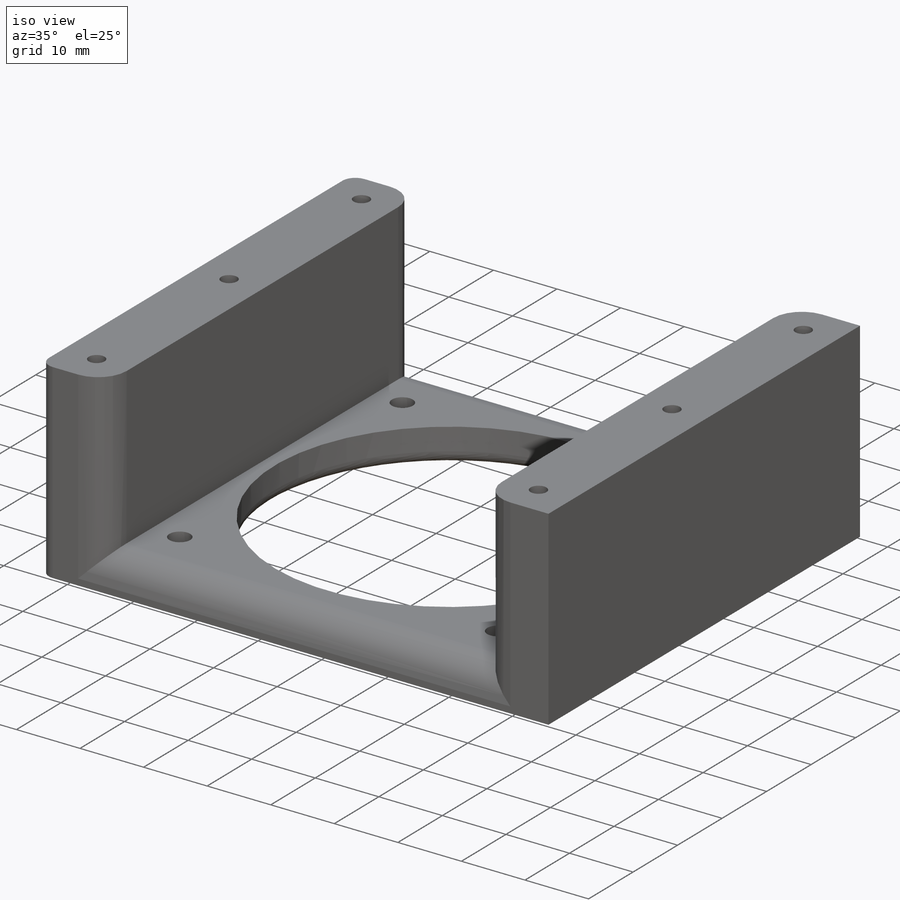
[diagram: iso view]
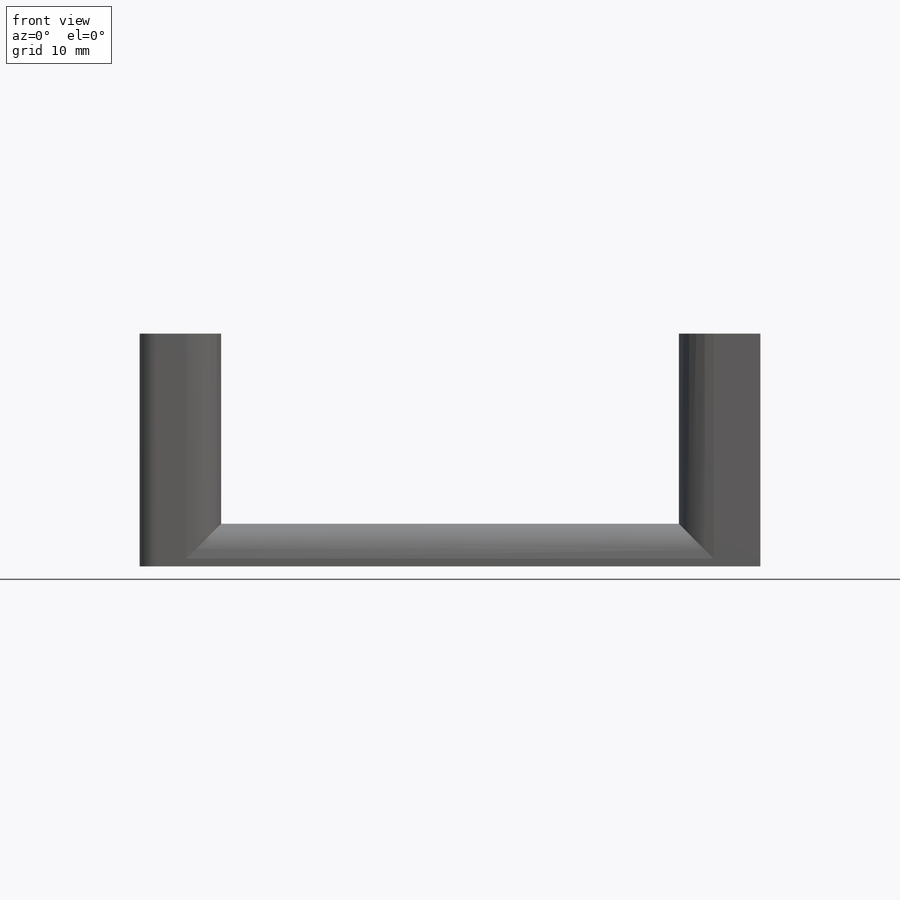
[diagram: front view]
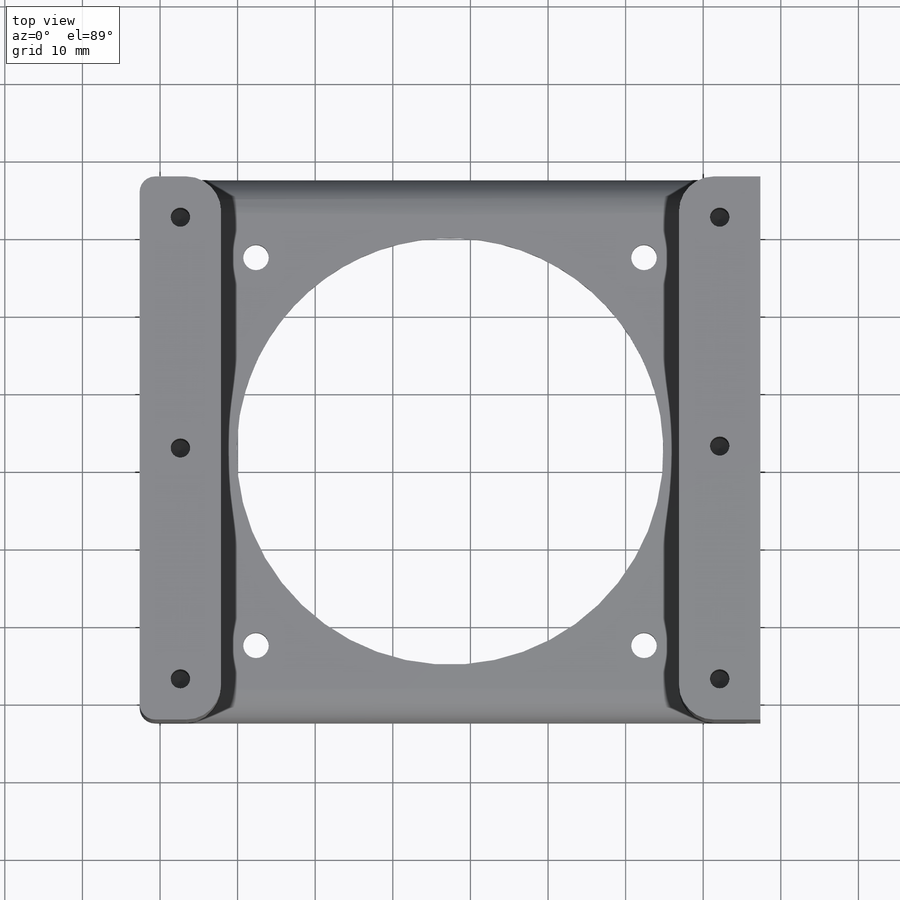
[diagram: top view]
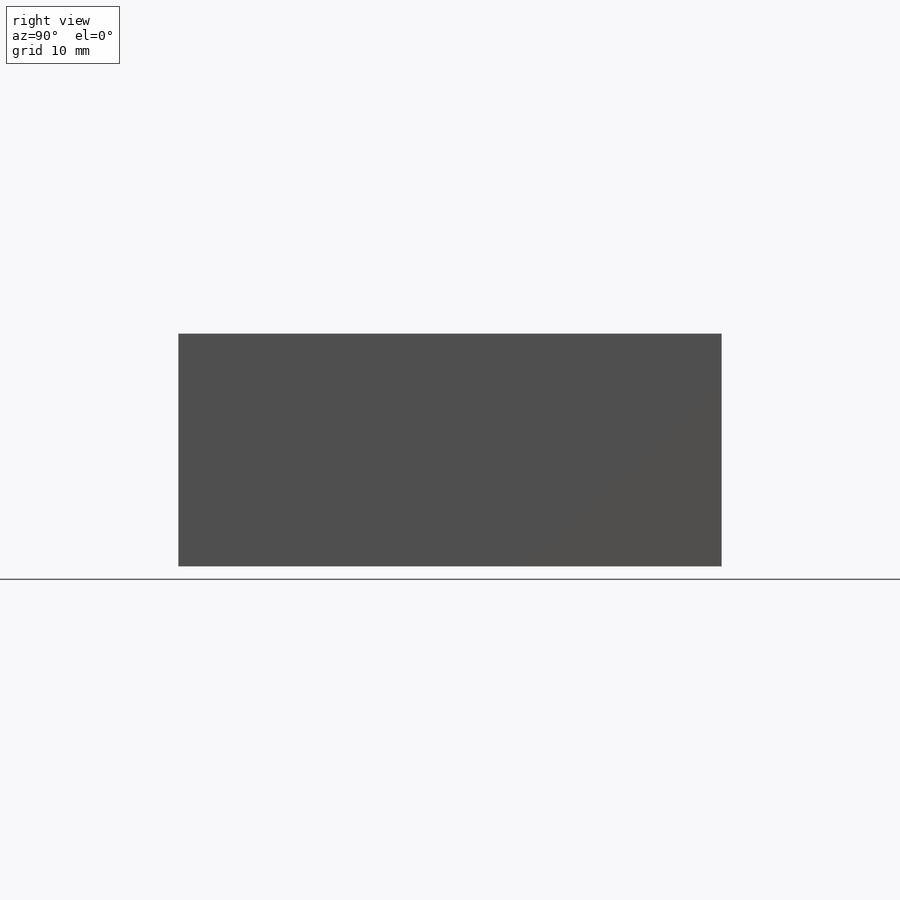
[diagram: right view]
SOLIDWORKS PART (.sldprt)
format: sldprt  version: not decoded by parser v0  size: 403,968 bytes
history: native  units: mm
features: sketch x13, fillet x5, cut_extrude x3, hole x3, material x1, extrude x1 (+11 scaffold rows collapsed)
feature tree (37):
  scaffold x11  (default folders/planes/origin — collapsed)
  material  "Material <not specified>"
  sketch  "Sketch1"  dims[D1=80.0mm D2=70.0mm]
  extrude  "Boss-Extrude1"  Depth=35.5mm
  sketch  "Sketch2"  dims[D1=59.0mm D2=24.5mm D3=5.5mm D4=10.5mm]
  cut_extrude  "Cut-Extrude1"  [1 undecoded]
  sketch  "Sketch6"  dims[c1.D3=55.0mm c1.D1=35.0mm c1.D2=~49.464368mm c2.D2=90.0deg c3.D2=40.0mm]
  cut_extrude  "Cut-Extrude3"  Depth=5.5mm
  sketch  "Sketch7"  dims[D1=15.0mm D2=10.0mm D3=10.0mm D4=15.0mm D5=15.0mm D6=10.0mm D7=10.0mm D8=15.0mm]
  hole  "M4x0.7 Tapped Hole1"  Diameter=3.3mm Depth=5.5mm
  sketch  "3DSketch2"
  sketch  "Sketch8"  dims[hole-wizard template sketch: 59 standard entries collapsed; hole parameters kept: c18.Thread Major Dia.=3.3mm c18.Thru Tap Drill Depth=5.5mm]
  fillet  "Fillet2"  Radius=2mm
  sketch  "Sketch9"
  cut_extrude  "Cut-Extrude5"  [1 undecoded]
  sketch  "Sketch10"  dims[c1.D1=5.25mm c1.D2=5.25mm c1.D3=7.25mm c2.D2=5.25mm c2.D3=5.25mm c2.D4=35.0mm c2.D5=5.25mm c2.D6=5.25mm c2.D7=5.25mm]
  hole  "Tap Drill for M3x0.5 Tap1"  Diameter=2.5mm Depth=15mm
  sketch  "3DSketch3"
  sketch  "Sketch11"  dims[hole-wizard template sketch: 47 standard entries collapsed; hole parameters kept: c15.Hole Depth=15.0mm c15.D3=~14.816244mm c15.Drill Angle=118.0deg]
  fillet  "Fillet5"  Radius=2mm
  fillet  "Fillet6"  Radius=2mm
  fillet  "Fillet7"  Radius=4.5mm
  fillet  "Fillet8"  Radius=4.5mm
  sketch  "Sketch13"  dims[D1=4.75mm D2=20.0mm D3=20.0mm D4=4.75mm D5=4.75mm D6=4.75mm D7=20.0mm D8=20.0mm]
  hole  "Tap Drill for M3x0.5 Tap2"  Diameter=2.5mm Depth=15mm
  sketch  "3DSketch4"
  sketch  "Sketch14"  dims[hole-wizard template sketch: 47 standard entries collapsed; hole parameters kept: c15.Hole Depth=15.0mm c15.D3=~14.816244mm c15.Drill Angle=118.0deg]
decode coverage: 19 of 25 modeling features carry decoded parameters
note: ~ marks probable driven/reference dimensions
note: 2 parameter values undecoded
note: suppression state not decoded; provenance and decode notes live in map.json
